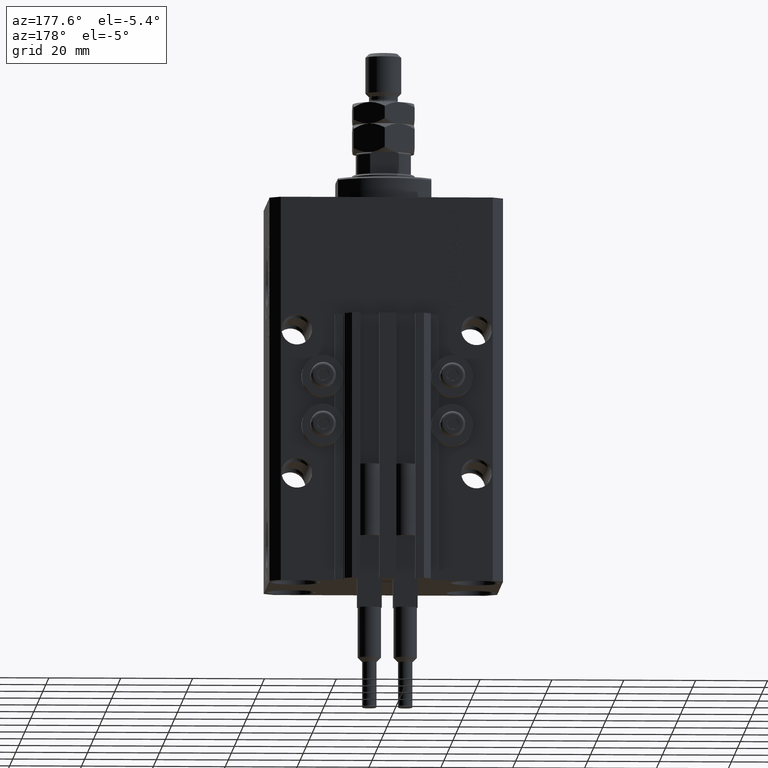
[diagram: clean part render]
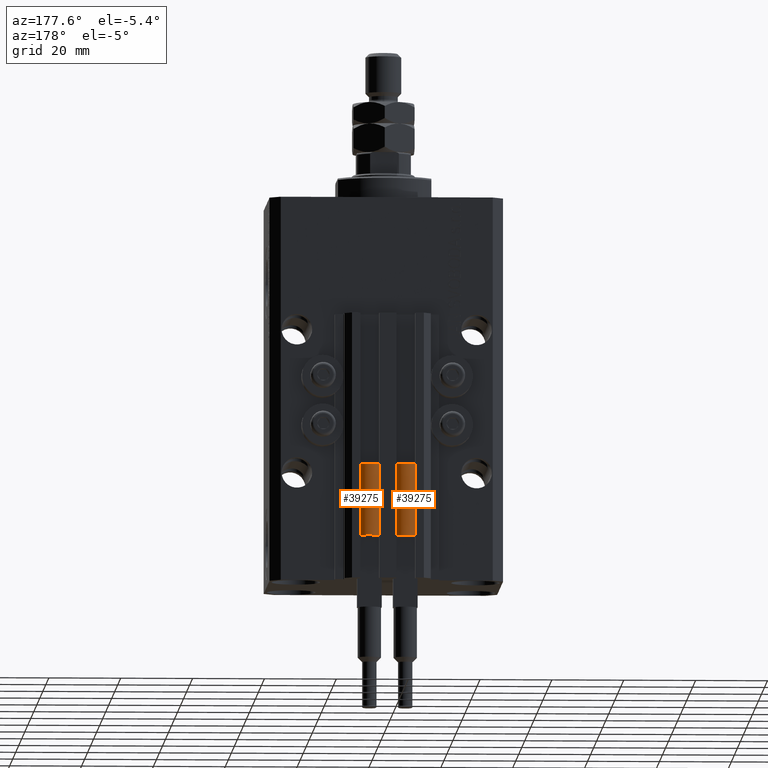
[diagram: same view with one multi-face feature highlighted, each face labeled with its STEP entity id]
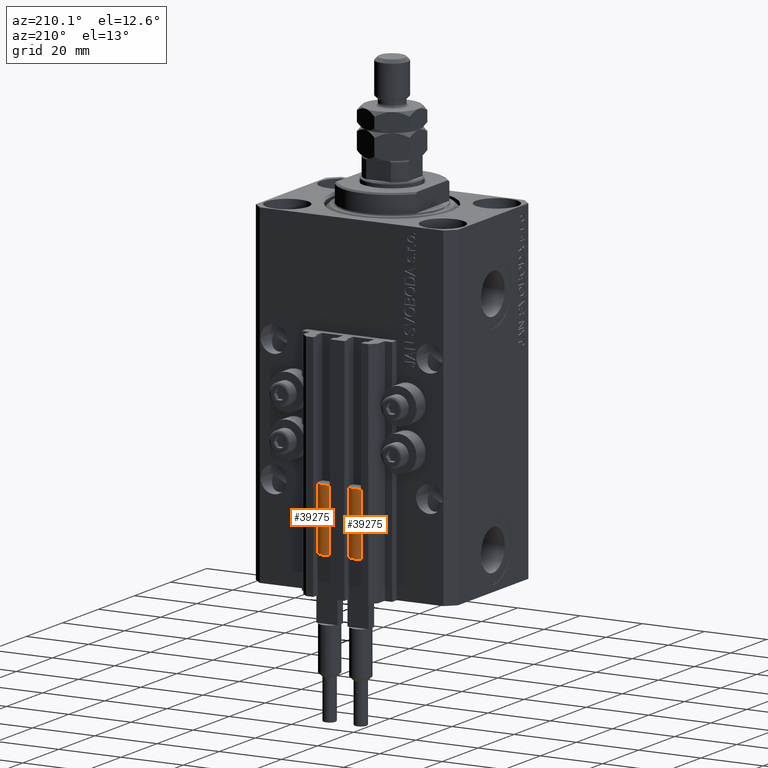
[diagram: same view with one multi-face feature highlighted, each face labeled with its STEP entity id]
A machine part, auxiliary view. The highlighted faces form ONE feature: a constant-radius fillet chain: 2 tangent blend faces with common blend radius 3.4 mm. The faces share edges in the B-rep.
A second angle (auxiliary view) of the same feature is appended — it is thin or edge-on in the first view.
Their STEP definitions:
[1] entity #39275 (Cylinder):
#808 = DIRECTION ( 'NONE',  ( 0.000000000000000000, 0.000000000000000000, 1.000000000000000000 ) ) ;
#1404 = VERTEX_POINT ( 'NONE', #9633 ) ;
#1594 = VERTEX_POINT ( 'NONE', #32105 ) ;
#1605 = CARTESIAN_POINT ( 'NONE',  ( 0.000000000000000000, 0.000000000000000000, 20.00000000000000000 ) ) ;
#1925 = ORIENTED_EDGE ( 'NONE', *, *, #20210, .F. ) ;
#2419 = CARTESIAN_POINT ( 'NONE',  ( -3.400000000000000355, 0.000000000000000000, 20.00000000000000000 ) ) ;
#3013 = CARTESIAN_POINT ( 'NONE',  ( 0.000000000000000000, 0.000000000000000000, 20.00000000000000000 ) ) ;
#3266 = CYLINDRICAL_SURFACE ( 'NONE', #18603, 3.400000000000000355 ) ;
#4180 = CARTESIAN_POINT ( 'NONE',  ( 0.000000000000000000, 0.000000000000000000, 20.00000000000000000 ) ) ;
#4608 = VECTOR ( 'NONE', #14978, 1000.000000000000000 ) ;
#5667 = DIRECTION ( 'NONE',  ( -0.000000000000000000, -0.000000000000000000, -1.000000000000000000 ) ) ;
#5764 = CARTESIAN_POINT ( 'NONE',  ( 3.400000000000000355, 0.000000000000000000, 20.00000000000000000 ) ) ;
#8008 = EDGE_CURVE ( 'NONE', #19705, #23934, #46066, .T. ) ;
#8452 = AXIS2_PLACEMENT_3D ( 'NONE', #29494, #44855, #17743 ) ;
#9633 = CARTESIAN_POINT ( 'NONE',  ( -3.399999999999999467, -4.915049848600952119E-16, 20.00000000000000000 ) ) ;
#9961 = ORIENTED_EDGE ( 'NONE', *, *, #43626, .F. ) ;
#10041 = ORIENTED_EDGE ( 'NONE', *, *, #32752, .F. ) ;
#10061 = DIRECTION ( 'NONE',  ( 1.000000000000000000, 0.000000000000000000, 0.000000000000000000 ) ) ;
#11686 = CARTESIAN_POINT ( 'NONE',  ( 0.000000000000000000, 0.000000000000000000, 20.00000000000000000 ) ) ;
#11710 = EDGE_CURVE ( 'NONE', #1594, #38549, #14200, .T. ) ;
#14200 = CIRCLE ( 'NONE', #42814, 3.400000000000000355 ) ;
#14978 = DIRECTION ( 'NONE',  ( -0.000000000000000000, -0.000000000000000000, -1.000000000000000000 ) ) ;
#17716 = CARTESIAN_POINT ( 'NONE',  ( 3.400000000000000355, 4.163799117101001052E-16, 20.00000000000000000 ) ) ;
#17743 = DIRECTION ( 'NONE',  ( 1.000000000000000000, 0.000000000000000000, 0.000000000000000000 ) ) ;
#18331 = EDGE_LOOP ( 'NONE', ( #9961, #33725, #38662, #10041, #1925, #47253 ) ) ;
#18603 = AXIS2_PLACEMENT_3D ( 'NONE', #3013, #50106, #25806 ) ;
#19547 = DIRECTION ( 'NONE',  ( 1.000000000000000000, 0.000000000000000000, 0.000000000000000000 ) ) ;
#19705 = VERTEX_POINT ( 'NONE', #30570 ) ;
#20210 = EDGE_CURVE ( 'NONE', #38549, #1404, #36106, .T. ) ;
#22977 = FACE_OUTER_BOUND ( 'NONE', #18331, .T. ) ;
#23513 = EDGE_CURVE ( 'NONE', #39573, #19705, #36631, .T. ) ;
#23934 = VERTEX_POINT ( 'NONE', #49813 ) ;
#25806 = DIRECTION ( 'NONE',  ( -1.000000000000000000, 0.000000000000000000, 0.000000000000000000 ) ) ;
#26373 = CARTESIAN_POINT ( 'NONE',  ( -3.051229260478471428, 1.500000000000000000, 20.00000000000000000 ) ) ;
#27108 = VECTOR ( 'NONE', #5667, 1000.000000000000000 ) ;
#28288 = DIRECTION ( 'NONE',  ( 1.000000000000000000, 0.000000000000000000, 0.000000000000000000 ) ) ;
#29494 = CARTESIAN_POINT ( 'NONE',  ( 0.000000000000000000, 0.000000000000000000, 0.000000000000000000 ) ) ;
#29582 = AXIS2_PLACEMENT_3D ( 'NONE', #11686, #31127, #28288 ) ;
#30570 = CARTESIAN_POINT ( 'NONE',  ( 3.400000000000000355, 4.163799117101001052E-16, 0.000000000000000000 ) ) ;
#31127 = DIRECTION ( 'NONE',  ( 0.000000000000000000, 0.000000000000000000, 1.000000000000000000 ) ) ;
#32105 = CARTESIAN_POINT ( 'NONE',  ( 3.051229260478471428, 1.500000000000000000, 20.00000000000000000 ) ) ;
#32752 = EDGE_CURVE ( 'NONE', #1404, #23934, #37497, .T. ) ;
#33725 = ORIENTED_EDGE ( 'NONE', *, *, #23513, .T. ) ;
#36106 = CIRCLE ( 'NONE', #29582, 3.400000000000000355 ) ;
#36631 = LINE ( 'NONE', #17716, #27108 ) ;
#36937 = DIRECTION ( 'NONE',  ( 0.000000000000000000, 0.000000000000000000, 1.000000000000000000 ) ) ;
#37497 = LINE ( 'NONE', #2419, #4608 ) ;
#38549 = VERTEX_POINT ( 'NONE', #26373 ) ;
#38662 = ORIENTED_EDGE ( 'NONE', *, *, #8008, .T. ) ;
#39275 = ADVANCED_FACE ( 'NONE', ( #22977 ), #3266, .T. ) ;
#39573 = VERTEX_POINT ( 'NONE', #5764 ) ;
#40799 = AXIS2_PLACEMENT_3D ( 'NONE', #1605, #36937, #10061 ) ;
#42814 = AXIS2_PLACEMENT_3D ( 'NONE', #4180, #808, #19547 ) ;
#43626 = EDGE_CURVE ( 'NONE', #39573, #1594, #44873, .T. ) ;
#44855 = DIRECTION ( 'NONE',  ( 0.000000000000000000, 0.000000000000000000, 1.000000000000000000 ) ) ;
#44873 = CIRCLE ( 'NONE', #40799, 3.400000000000000355 ) ;
#46066 = CIRCLE ( 'NONE', #8452, 3.400000000000000355 ) ;
#47253 = ORIENTED_EDGE ( 'NONE', *, *, #11710, .F. ) ;
#49813 = CARTESIAN_POINT ( 'NONE',  ( -3.400000000000000355, 0.000000000000000000, 0.000000000000000000 ) ) ;
#50106 = DIRECTION ( 'NONE',  ( -0.000000000000000000, -0.000000000000000000, -1.000000000000000000 ) ) ;
[2] entity #39275 (Cylinder):
#808 = DIRECTION ( 'NONE',  ( 0.000000000000000000, 0.000000000000000000, 1.000000000000000000 ) ) ;
#1404 = VERTEX_POINT ( 'NONE', #9633 ) ;
#1594 = VERTEX_POINT ( 'NONE', #32105 ) ;
#1605 = CARTESIAN_POINT ( 'NONE',  ( 0.000000000000000000, 0.000000000000000000, 20.00000000000000000 ) ) ;
#1925 = ORIENTED_EDGE ( 'NONE', *, *, #20210, .F. ) ;
#2419 = CARTESIAN_POINT ( 'NONE',  ( -3.400000000000000355, 0.000000000000000000, 20.00000000000000000 ) ) ;
#3013 = CARTESIAN_POINT ( 'NONE',  ( 0.000000000000000000, 0.000000000000000000, 20.00000000000000000 ) ) ;
#3266 = CYLINDRICAL_SURFACE ( 'NONE', #18603, 3.400000000000000355 ) ;
#4180 = CARTESIAN_POINT ( 'NONE',  ( 0.000000000000000000, 0.000000000000000000, 20.00000000000000000 ) ) ;
#4608 = VECTOR ( 'NONE', #14978, 1000.000000000000000 ) ;
#5667 = DIRECTION ( 'NONE',  ( -0.000000000000000000, -0.000000000000000000, -1.000000000000000000 ) ) ;
#5764 = CARTESIAN_POINT ( 'NONE',  ( 3.400000000000000355, 0.000000000000000000, 20.00000000000000000 ) ) ;
#8008 = EDGE_CURVE ( 'NONE', #19705, #23934, #46066, .T. ) ;
#8452 = AXIS2_PLACEMENT_3D ( 'NONE', #29494, #44855, #17743 ) ;
#9633 = CARTESIAN_POINT ( 'NONE',  ( -3.399999999999999467, -4.915049848600952119E-16, 20.00000000000000000 ) ) ;
#9961 = ORIENTED_EDGE ( 'NONE', *, *, #43626, .F. ) ;
#10041 = ORIENTED_EDGE ( 'NONE', *, *, #32752, .F. ) ;
#10061 = DIRECTION ( 'NONE',  ( 1.000000000000000000, 0.000000000000000000, 0.000000000000000000 ) ) ;
#11686 = CARTESIAN_POINT ( 'NONE',  ( 0.000000000000000000, 0.000000000000000000, 20.00000000000000000 ) ) ;
#11710 = EDGE_CURVE ( 'NONE', #1594, #38549, #14200, .T. ) ;
#14200 = CIRCLE ( 'NONE', #42814, 3.400000000000000355 ) ;
#14978 = DIRECTION ( 'NONE',  ( -0.000000000000000000, -0.000000000000000000, -1.000000000000000000 ) ) ;
#17716 = CARTESIAN_POINT ( 'NONE',  ( 3.400000000000000355, 4.163799117101001052E-16, 20.00000000000000000 ) ) ;
#17743 = DIRECTION ( 'NONE',  ( 1.000000000000000000, 0.000000000000000000, 0.000000000000000000 ) ) ;
#18331 = EDGE_LOOP ( 'NONE', ( #9961, #33725, #38662, #10041, #1925, #47253 ) ) ;
#18603 = AXIS2_PLACEMENT_3D ( 'NONE', #3013, #50106, #25806 ) ;
#19547 = DIRECTION ( 'NONE',  ( 1.000000000000000000, 0.000000000000000000, 0.000000000000000000 ) ) ;
#19705 = VERTEX_POINT ( 'NONE', #30570 ) ;
#20210 = EDGE_CURVE ( 'NONE', #38549, #1404, #36106, .T. ) ;
#22977 = FACE_OUTER_BOUND ( 'NONE', #18331, .T. ) ;
#23513 = EDGE_CURVE ( 'NONE', #39573, #19705, #36631, .T. ) ;
#23934 = VERTEX_POINT ( 'NONE', #49813 ) ;
#25806 = DIRECTION ( 'NONE',  ( -1.000000000000000000, 0.000000000000000000, 0.000000000000000000 ) ) ;
#26373 = CARTESIAN_POINT ( 'NONE',  ( -3.051229260478471428, 1.500000000000000000, 20.00000000000000000 ) ) ;
#27108 = VECTOR ( 'NONE', #5667, 1000.000000000000000 ) ;
#28288 = DIRECTION ( 'NONE',  ( 1.000000000000000000, 0.000000000000000000, 0.000000000000000000 ) ) ;
#29494 = CARTESIAN_POINT ( 'NONE',  ( 0.000000000000000000, 0.000000000000000000, 0.000000000000000000 ) ) ;
#29582 = AXIS2_PLACEMENT_3D ( 'NONE', #11686, #31127, #28288 ) ;
#30570 = CARTESIAN_POINT ( 'NONE',  ( 3.400000000000000355, 4.163799117101001052E-16, 0.000000000000000000 ) ) ;
#31127 = DIRECTION ( 'NONE',  ( 0.000000000000000000, 0.000000000000000000, 1.000000000000000000 ) ) ;
#32105 = CARTESIAN_POINT ( 'NONE',  ( 3.051229260478471428, 1.500000000000000000, 20.00000000000000000 ) ) ;
#32752 = EDGE_CURVE ( 'NONE', #1404, #23934, #37497, .T. ) ;
#33725 = ORIENTED_EDGE ( 'NONE', *, *, #23513, .T. ) ;
#36106 = CIRCLE ( 'NONE', #29582, 3.400000000000000355 ) ;
#36631 = LINE ( 'NONE', #17716, #27108 ) ;
#36937 = DIRECTION ( 'NONE',  ( 0.000000000000000000, 0.000000000000000000, 1.000000000000000000 ) ) ;
#37497 = LINE ( 'NONE', #2419, #4608 ) ;
#38549 = VERTEX_POINT ( 'NONE', #26373 ) ;
#38662 = ORIENTED_EDGE ( 'NONE', *, *, #8008, .T. ) ;
#39275 = ADVANCED_FACE ( 'NONE', ( #22977 ), #3266, .T. ) ;
#39573 = VERTEX_POINT ( 'NONE', #5764 ) ;
#40799 = AXIS2_PLACEMENT_3D ( 'NONE', #1605, #36937, #10061 ) ;
#42814 = AXIS2_PLACEMENT_3D ( 'NONE', #4180, #808, #19547 ) ;
#43626 = EDGE_CURVE ( 'NONE', #39573, #1594, #44873, .T. ) ;
#44855 = DIRECTION ( 'NONE',  ( 0.000000000000000000, 0.000000000000000000, 1.000000000000000000 ) ) ;
#44873 = CIRCLE ( 'NONE', #40799, 3.400000000000000355 ) ;
#46066 = CIRCLE ( 'NONE', #8452, 3.400000000000000355 ) ;
#47253 = ORIENTED_EDGE ( 'NONE', *, *, #11710, .F. ) ;
#49813 = CARTESIAN_POINT ( 'NONE',  ( -3.400000000000000355, 0.000000000000000000, 0.000000000000000000 ) ) ;
#50106 = DIRECTION ( 'NONE',  ( -0.000000000000000000, -0.000000000000000000, -1.000000000000000000 ) ) ;